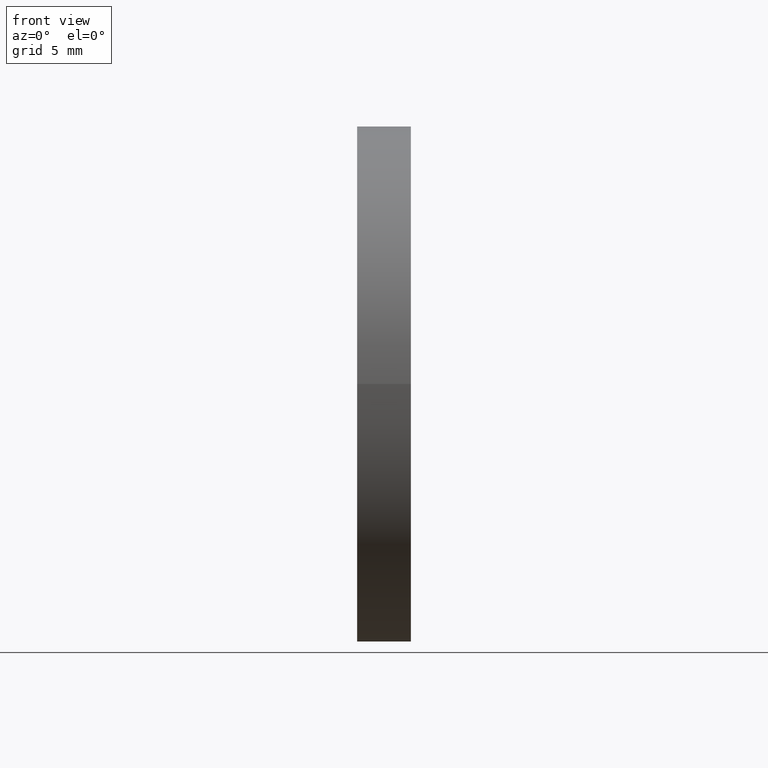
[diagram: clean part render]
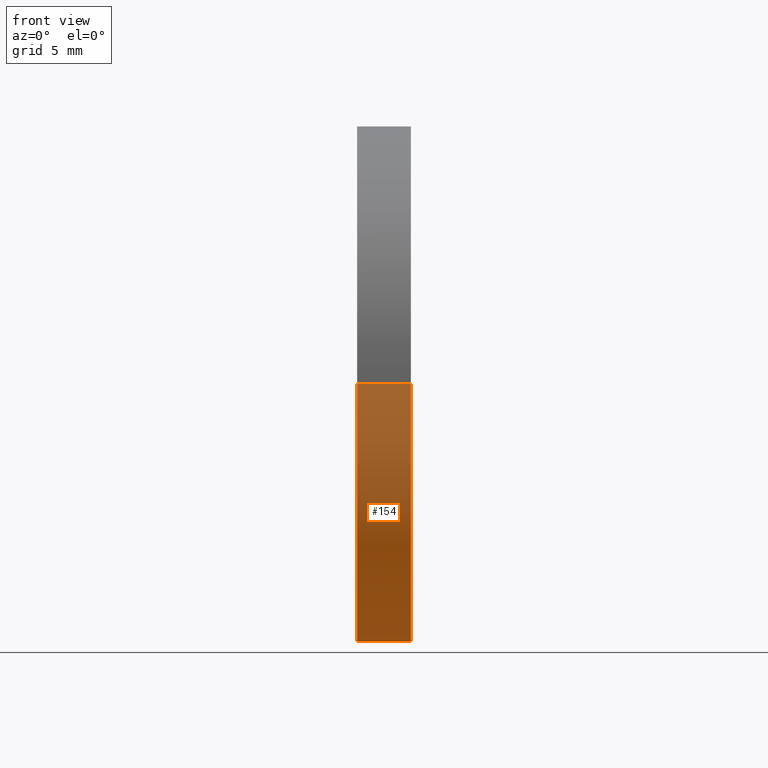
[diagram: same view with one face highlighted and labeled with its STEP entity id]
A machine part, front view. The second image highlights one B-rep face of the part: STEP entity #154.
In plain terms, the highlighted cylindrical surface (partial cylindrical patch) has radius 12.5 mm, axis along (-1, 0, -0).
Its self-contained STEP definition (entity closure, byte-faithful):
#7 = DIRECTION ( 'NONE',  ( -5.551115123125782700E-016, -1.000000000000000000, 0.0000000000000000000 ) ) ;
#10 = VERTEX_POINT ( 'NONE', #50 ) ;
#11 = EDGE_LOOP ( 'NONE', ( #144, #137, #73, #92 ) ) ;
#14 = EDGE_CURVE ( 'NONE', #10, #23, #54, .T. ) ;
#15 = DIRECTION ( 'NONE',  ( -1.000000000000000000, 7.636108817321419600E-016, -0.0000000000000000000 ) ) ;
#17 = AXIS2_PLACEMENT_3D ( 'NONE', #62, #158, #135 ) ;
#18 = CARTESIAN_POINT ( 'NONE',  ( 57.35819015802111700, 45.07872591329309100, 1.530808498934191900E-015 ) ) ;
#23 = VERTEX_POINT ( 'NONE', #33 ) ;
#25 = CYLINDRICAL_SURFACE ( 'NONE', #91, 12.50000000000000000 ) ;
#30 = CIRCLE ( 'NONE', #17, 12.49999999999999600 ) ;
#33 = CARTESIAN_POINT ( 'NONE',  ( 57.35819015802110200, 20.07872591329309800, 0.0000000000000000000 ) ) ;
#37 = EDGE_CURVE ( 'NONE', #149, #10, #95, .T. ) ;
#41 = VERTEX_POINT ( 'NONE', #18 ) ;
#49 = AXIS2_PLACEMENT_3D ( 'NONE', #79, #51, #7 ) ;
#50 = CARTESIAN_POINT ( 'NONE',  ( 59.96462464522185300, 20.07872685537733700, 0.0000000000000000000 ) ) ;
#51 = DIRECTION ( 'NONE',  ( -1.000000000000000000, 7.636108817321419600E-016, -0.0000000000000000000 ) ) ;
#53 = DIRECTION ( 'NONE',  ( -1.000000000000000000, 7.636108817321419600E-016, -0.0000000000000000000 ) ) ;
#54 = LINE ( 'NONE', #98, #106 ) ;
#55 = EDGE_CURVE ( 'NONE', #149, #41, #83, .T. ) ;
#59 = CARTESIAN_POINT ( 'NONE',  ( 59.96462464522185300, 45.07872591329312000, 1.530808383562146000E-015 ) ) ;
#62 = CARTESIAN_POINT ( 'NONE',  ( 57.35819015802111000, 32.57872591329309800, 0.0000000000000000000 ) ) ;
#73 = ORIENTED_EDGE ( 'NONE', *, *, #14, .T. ) ;
#79 = CARTESIAN_POINT ( 'NONE',  ( 59.96462464522186800, 32.57872591329309100, 0.0000000000000000000 ) ) ;
#83 = LINE ( 'NONE', #150, #112 ) ;
#91 = AXIS2_PLACEMENT_3D ( 'NONE', #145, #15, #116 ) ;
#92 = ORIENTED_EDGE ( 'NONE', *, *, #110, .F. ) ;
#95 = CIRCLE ( 'NONE', #49, 12.50000000000000000 ) ;
#98 = CARTESIAN_POINT ( 'NONE',  ( 55.00739462442117400, 20.07872591329309500, 0.0000000000000000000 ) ) ;
#105 = FACE_OUTER_BOUND ( 'NONE', #11, .T. ) ;
#106 = VECTOR ( 'NONE', #119, 1000.000000000000000 ) ;
#110 = EDGE_CURVE ( 'NONE', #41, #23, #30, .T. ) ;
#112 = VECTOR ( 'NONE', #53, 1000.000000000000000 ) ;
#116 = DIRECTION ( 'NONE',  ( -5.551115123125782700E-016, -1.000000000000000000, 0.0000000000000000000 ) ) ;
#119 = DIRECTION ( 'NONE',  ( -1.000000000000000000, 7.636108817321419600E-016, -0.0000000000000000000 ) ) ;
#135 = DIRECTION ( 'NONE',  ( -5.551115123125784700E-016, -1.000000000000000000, 0.0000000000000000000 ) ) ;
#137 = ORIENTED_EDGE ( 'NONE', *, *, #37, .T. ) ;
#144 = ORIENTED_EDGE ( 'NONE', *, *, #55, .F. ) ;
#145 = CARTESIAN_POINT ( 'NONE',  ( 55.00739462442118100, 32.57872591329309800, 0.0000000000000000000 ) ) ;
#149 = VERTEX_POINT ( 'NONE', #59 ) ;
#150 = CARTESIAN_POINT ( 'NONE',  ( 55.00739462442118800, 45.07872591329309100, 1.530808498934191500E-015 ) ) ;
#154 = ADVANCED_FACE ( 'NONE', ( #105 ), #25, .T. ) ;
#158 = DIRECTION ( 'NONE',  ( -1.000000000000000000, 7.636108817321419600E-016, -0.0000000000000000000 ) ) ;